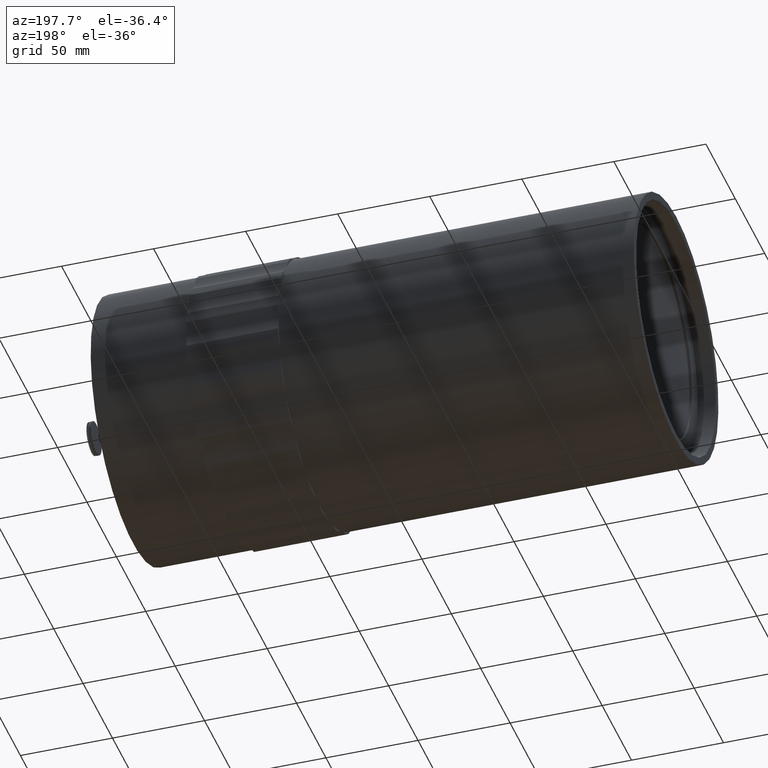
[diagram: clean part render]
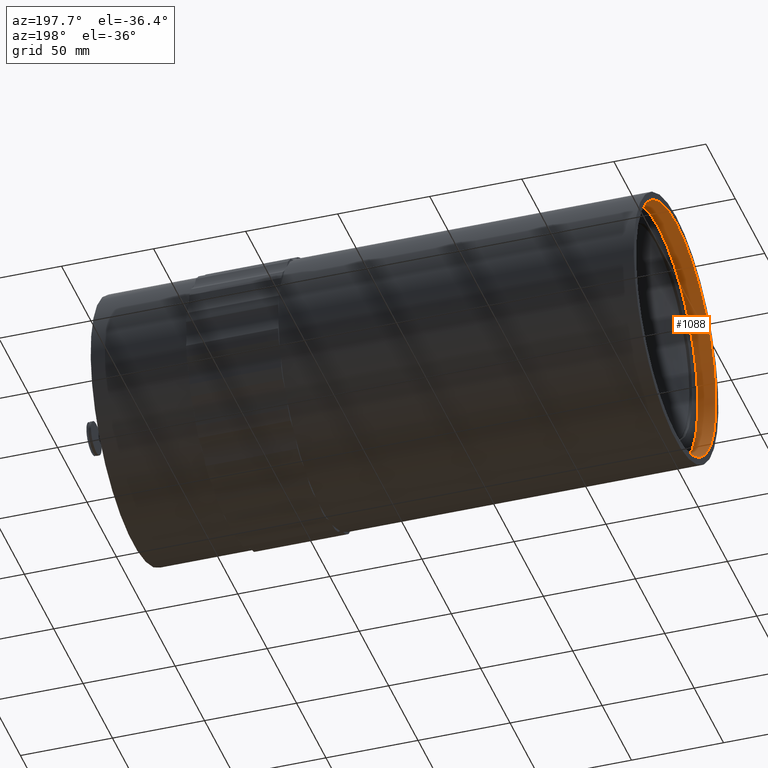
[diagram: same view with one face highlighted and labeled with its STEP entity id]
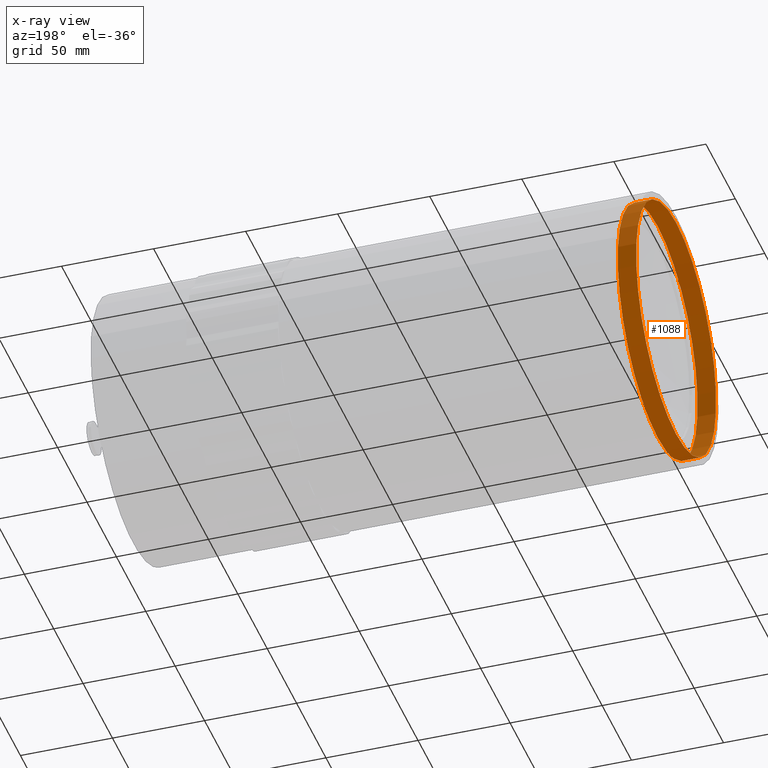
[diagram: x-ray of the same camera — body ghosted, the highlighted face saturated]
A machine part, auxiliary view. The second image highlights one B-rep face of the part: STEP entity #1088.
The next image is the same camera in x-ray: the body ghosted, the highlighted face saturated — about 0% of this face is hidden behind the body in this view.
In plain terms, the highlighted cylindrical surface (bore or boss wall) has radius 68 mm, axis along (-1, -0, -0).
Its self-contained STEP definition (entity closure, byte-faithful):
#111 = CIRCLE ( 'NONE', #2144, 67.99999999999997158 ) ;
#206 = ORIENTED_EDGE ( 'NONE', *, *, #952, .F. ) ;
#243 = AXIS2_PLACEMENT_3D ( 'NONE', #269, #1779, #2702 ) ;
#269 = CARTESIAN_POINT ( 'NONE',  ( -125.8137890602518070, 0.000000000000000000, 0.000000000000000000 ) ) ;
#642 = EDGE_LOOP ( 'NONE', ( #206 ) ) ;
#667 = DIRECTION ( 'NONE',  ( 0.000000000000000000, 0.000000000000000000, 1.000000000000000000 ) ) ;
#774 = CARTESIAN_POINT ( 'NONE',  ( -204.0010842964864821, 0.000000000000000000, 67.99999999999997158 ) ) ;
#852 = CIRCLE ( 'NONE', #1083, 67.99999999999997158 ) ;
#926 = VERTEX_POINT ( 'NONE', #2197 ) ;
#952 = EDGE_CURVE ( 'NONE', #926, #926, #852, .T. ) ;
#1083 = AXIS2_PLACEMENT_3D ( 'NONE', #1277, #2203, #667 ) ;
#1088 = ADVANCED_FACE ( 'NONE', ( #1141, #1381 ), #2017, .F. ) ;
#1141 = FACE_OUTER_BOUND ( 'NONE', #642, .T. ) ;
#1277 = CARTESIAN_POINT ( 'NONE',  ( -194.0010842964864537, 0.000000000000000000, 0.000000000000000000 ) ) ;
#1305 = CARTESIAN_POINT ( 'NONE',  ( -204.0010842964864821, 0.000000000000000000, 0.000000000000000000 ) ) ;
#1381 = FACE_OUTER_BOUND ( 'NONE', #1574, .T. ) ;
#1574 = EDGE_LOOP ( 'NONE', ( #2232 ) ) ;
#1779 = DIRECTION ( 'NONE',  ( -1.000000000000000000, -0.000000000000000000, -0.000000000000000000 ) ) ;
#1850 = VERTEX_POINT ( 'NONE', #774 ) ;
#2017 = CYLINDRICAL_SURFACE ( 'NONE', #243, 67.99999999999997158 ) ;
#2144 = AXIS2_PLACEMENT_3D ( 'NONE', #1305, #2604, #2389 ) ;
#2197 = CARTESIAN_POINT ( 'NONE',  ( -194.0010842964864537, 0.000000000000000000, 67.99999999999997158 ) ) ;
#2203 = DIRECTION ( 'NONE',  ( -1.000000000000000000, -0.000000000000000000, -0.000000000000000000 ) ) ;
#2232 = ORIENTED_EDGE ( 'NONE', *, *, #2840, .T. ) ;
#2389 = DIRECTION ( 'NONE',  ( 0.000000000000000000, 0.000000000000000000, 1.000000000000000000 ) ) ;
#2604 = DIRECTION ( 'NONE',  ( -1.000000000000000000, -0.000000000000000000, -0.000000000000000000 ) ) ;
#2702 = DIRECTION ( 'NONE',  ( 0.000000000000000000, 0.000000000000000000, 1.000000000000000000 ) ) ;
#2840 = EDGE_CURVE ( 'NONE', #1850, #1850, #111, .T. ) ;